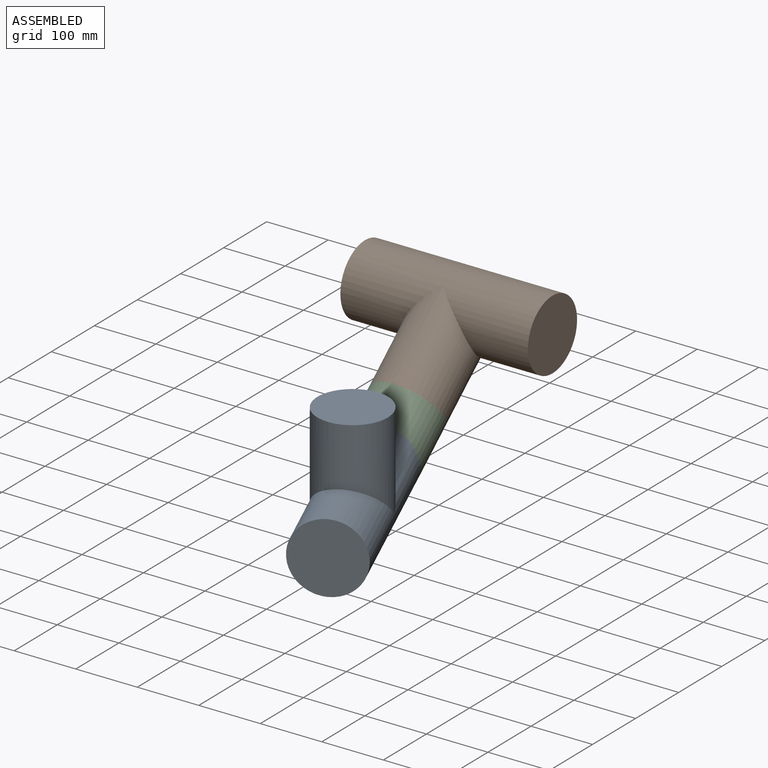
[diagram: assembled view]
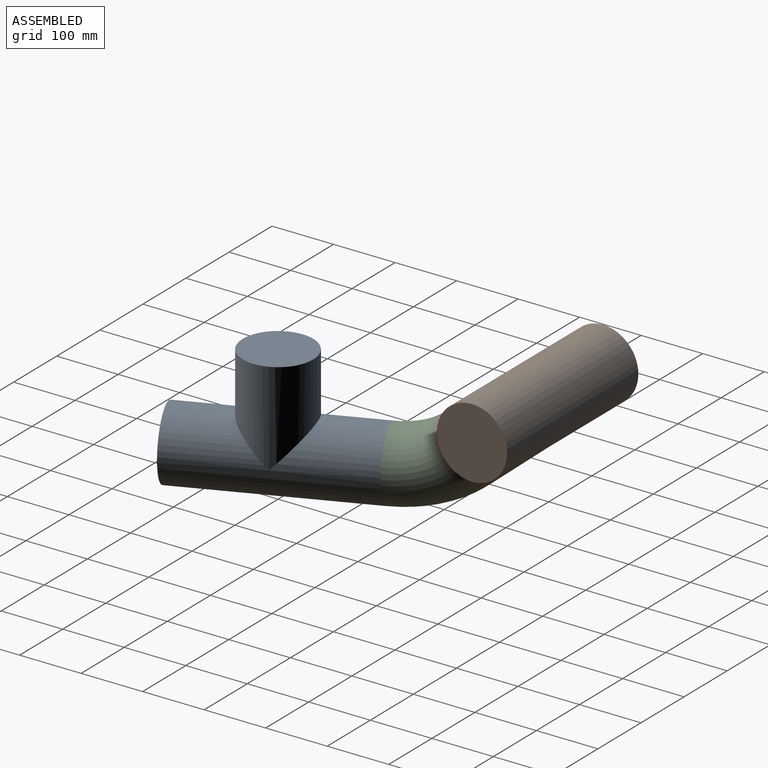
[diagram: assembled view, second angle]
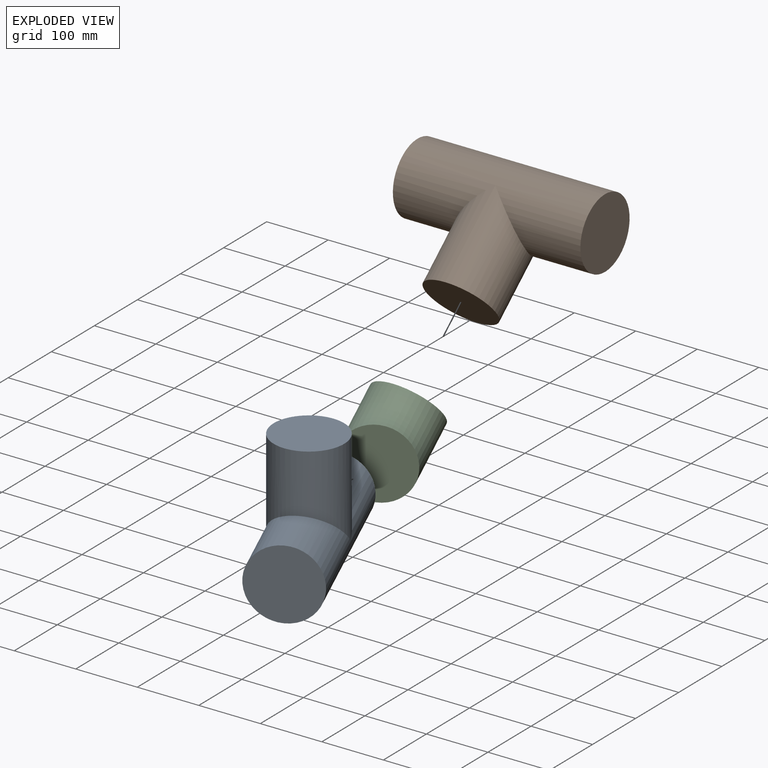
[diagram: exploded view]
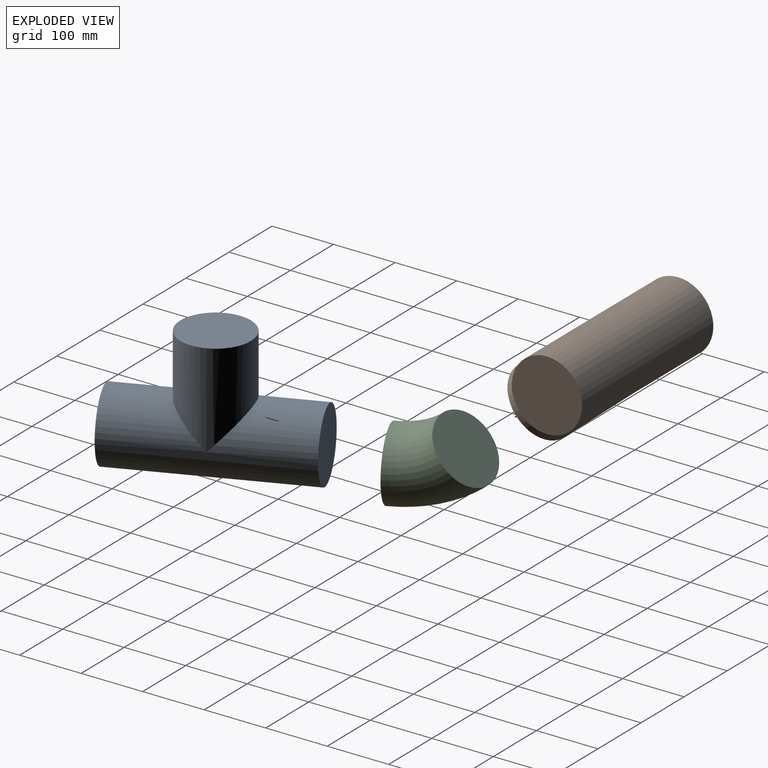
[diagram: exploded view, second angle]
ASSEMBLY  parts=3 mates=2
PART A: 5 faces, bbox 114.3x304.8x209.6 mm
  f0: cylinder r=57.15mm len=304.8mm, axis (0,1,0), area 96384.3mm2, adj f1,f2,f3
  f1: plane 114.3x114.3mm, normal (0,-1,0), area 10260.8mm2, adj f0
  f2: plane 114.3x114.3mm, normal (0,1,0), area 10260.8mm2, adj f0
  f3: cylinder r=57.15mm len=152.4mm, axis (0,0,-1), area 41659.9mm2, adj f0,f4
  f4: plane 114.3x114.3mm, normal (0,0,1), area 10260.8mm2, adj f3
PART B: same geometry as A
PART C: 3 faces, bbox 159.5x160.4x114.3 mm
  f0: plane 114.3x114.3mm, normal (0,-1,0), area 10260.8mm2, adj f2
  f1: plane 114.3x80.82mm, normal (0.71,0.71,0), area 10260.8mm2, adj f2
  f2: torus R=152.4mm, axis (0,0,-1), area 42980.4mm2, adj f0,f1
PLACE A rot(axis=(0,0,1),22.5deg) t=(-283.03,47.72,-152.4)mm
PLACE B rot(axis=(0.67,-0.67,0.31),145.3deg) t=(-234.88,520.62,-199.85)mm
PLACE C rot(axis=(0.19,-0.94,0.29),68.9deg) t=(-58.32,140.8,-152.4)mm
MATE revolute B.f3 <-> C.f1  axis (0,-0.77,-0.64) through (-82.48,247.43,-111.77)mm
MATE revolute C.f0 <-> A.f0  axis (0.38,-0.92,0) through (-58.32,140.8,-152.4)mm
